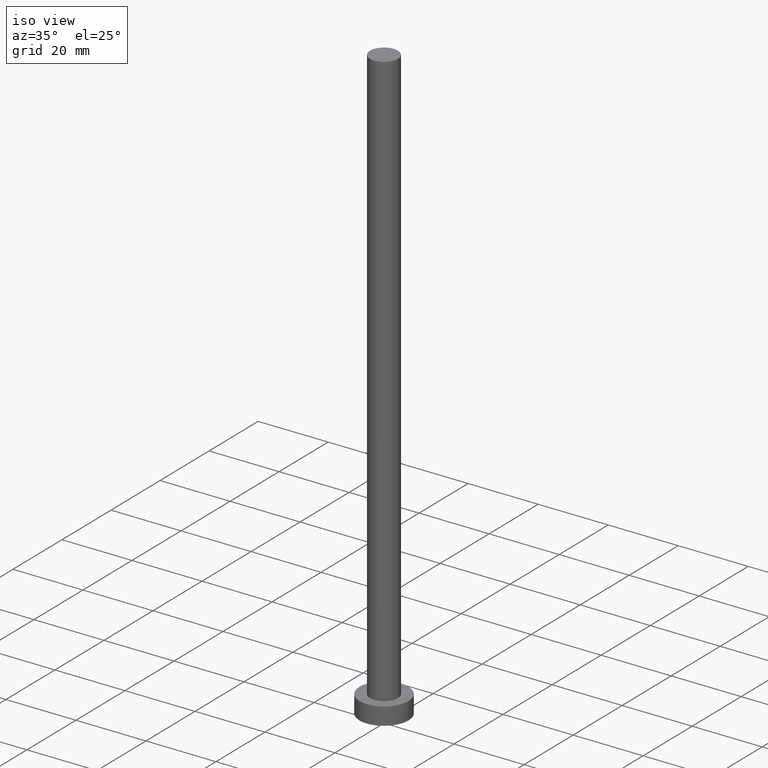
[diagram: clean part render]
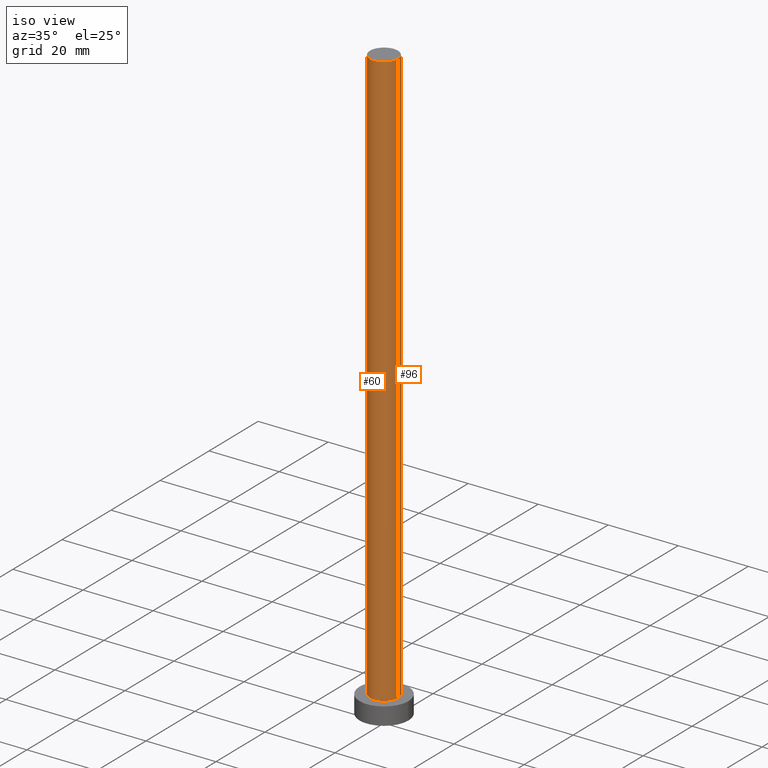
[diagram: same view with one multi-face feature highlighted, each face labeled with its STEP entity id]
A machine part, iso view. The highlighted faces form ONE feature: a constant-radius fillet chain: 2 tangent blend faces with common blend radius 4 mm. The faces share edges in the B-rep.
Their STEP definitions:
[1] entity #60 (Cylinder):
#8 = AXIS2_PLACEMENT_3D ( 'NONE', #219, #35, #117 ) ;
#9 = EDGE_CURVE ( 'NONE', #97, #39, #63, .T. ) ;
#16 = AXIS2_PLACEMENT_3D ( 'NONE', #86, #141, #243 ) ;
#29 = CIRCLE ( 'NONE', #16, 4.000000000000000000 ) ;
#32 = VERTEX_POINT ( 'NONE', #216 ) ;
#35 = DIRECTION ( 'NONE',  ( 0.000000000000000000, 0.000000000000000000, 1.000000000000000000 ) ) ;
#39 = VERTEX_POINT ( 'NONE', #200 ) ;
#42 = VECTOR ( 'NONE', #67, 1000.000000000000000 ) ;
#48 = CARTESIAN_POINT ( 'NONE',  ( 0.000000000000000000, 0.000000000000000000, 170.0000000000000000 ) ) ;
#60 = ADVANCED_FACE ( 'NONE', ( #105 ), #206, .T. ) ;
#62 = EDGE_LOOP ( 'NONE', ( #233, #118, #236, #212 ) ) ;
#63 = CIRCLE ( 'NONE', #8, 4.000000000000000000 ) ;
#67 = DIRECTION ( 'NONE',  ( -0.000000000000000000, -0.000000000000000000, -1.000000000000000000 ) ) ;
#79 = VERTEX_POINT ( 'NONE', #202 ) ;
#86 = CARTESIAN_POINT ( 'NONE',  ( 0.000000000000000000, 0.000000000000000000, 5.000000000000000000 ) ) ;
#88 = LINE ( 'NONE', #162, #195 ) ;
#97 = VERTEX_POINT ( 'NONE', #254 ) ;
#105 = FACE_OUTER_BOUND ( 'NONE', #62, .T. ) ;
#117 = DIRECTION ( 'NONE',  ( 1.000000000000000000, 0.000000000000000000, 0.000000000000000000 ) ) ;
#118 = ORIENTED_EDGE ( 'NONE', *, *, #9, .F. ) ;
#123 = DIRECTION ( 'NONE',  ( -0.000000000000000000, -0.000000000000000000, -1.000000000000000000 ) ) ;
#128 = EDGE_CURVE ( 'NONE', #79, #32, #29, .T. ) ;
#141 = DIRECTION ( 'NONE',  ( 0.000000000000000000, 0.000000000000000000, 1.000000000000000000 ) ) ;
#161 = CARTESIAN_POINT ( 'NONE',  ( -4.000000000000000000, 0.000000000000000000, 170.0000000000000000 ) ) ;
#162 = CARTESIAN_POINT ( 'NONE',  ( 4.000000000000000000, 4.898587196589412829E-16, 170.0000000000000000 ) ) ;
#181 = DIRECTION ( 'NONE',  ( -1.000000000000000000, 0.000000000000000000, 0.000000000000000000 ) ) ;
#195 = VECTOR ( 'NONE', #242, 1000.000000000000000 ) ;
#200 = CARTESIAN_POINT ( 'NONE',  ( 4.000000000000000000, 4.898587196589412829E-16, 170.0000000000000000 ) ) ;
#202 = CARTESIAN_POINT ( 'NONE',  ( -4.000000000000000000, 0.000000000000000000, 5.000000000000000000 ) ) ;
#206 = CYLINDRICAL_SURFACE ( 'NONE', #245, 4.000000000000000000 ) ;
#212 = ORIENTED_EDGE ( 'NONE', *, *, #128, .T. ) ;
#214 = EDGE_CURVE ( 'NONE', #97, #79, #240, .T. ) ;
#216 = CARTESIAN_POINT ( 'NONE',  ( 4.000000000000000000, 4.898587196589412829E-16, 5.000000000000000000 ) ) ;
#219 = CARTESIAN_POINT ( 'NONE',  ( 0.000000000000000000, 0.000000000000000000, 170.0000000000000000 ) ) ;
#233 = ORIENTED_EDGE ( 'NONE', *, *, #235, .F. ) ;
#235 = EDGE_CURVE ( 'NONE', #39, #32, #88, .T. ) ;
#236 = ORIENTED_EDGE ( 'NONE', *, *, #214, .T. ) ;
#240 = LINE ( 'NONE', #161, #42 ) ;
#242 = DIRECTION ( 'NONE',  ( -0.000000000000000000, -0.000000000000000000, -1.000000000000000000 ) ) ;
#243 = DIRECTION ( 'NONE',  ( 1.000000000000000000, 0.000000000000000000, 0.000000000000000000 ) ) ;
#245 = AXIS2_PLACEMENT_3D ( 'NONE', #48, #123, #181 ) ;
#254 = CARTESIAN_POINT ( 'NONE',  ( -4.000000000000000000, 0.000000000000000000, 170.0000000000000000 ) ) ;
[2] entity #96 (Cylinder):
#13 = ORIENTED_EDGE ( 'NONE', *, *, #160, .F. ) ;
#14 = ORIENTED_EDGE ( 'NONE', *, *, #57, .T. ) ;
#20 = DIRECTION ( 'NONE',  ( 0.000000000000000000, 0.000000000000000000, 1.000000000000000000 ) ) ;
#23 = FACE_OUTER_BOUND ( 'NONE', #197, .T. ) ;
#32 = VERTEX_POINT ( 'NONE', #216 ) ;
#38 = ORIENTED_EDGE ( 'NONE', *, *, #235, .T. ) ;
#39 = VERTEX_POINT ( 'NONE', #200 ) ;
#42 = VECTOR ( 'NONE', #67, 1000.000000000000000 ) ;
#46 = DIRECTION ( 'NONE',  ( 1.000000000000000000, 0.000000000000000000, 0.000000000000000000 ) ) ;
#57 = EDGE_CURVE ( 'NONE', #32, #79, #232, .T. ) ;
#67 = DIRECTION ( 'NONE',  ( -0.000000000000000000, -0.000000000000000000, -1.000000000000000000 ) ) ;
#79 = VERTEX_POINT ( 'NONE', #202 ) ;
#88 = LINE ( 'NONE', #162, #195 ) ;
#96 = ADVANCED_FACE ( 'NONE', ( #23 ), #109, .T. ) ;
#97 = VERTEX_POINT ( 'NONE', #254 ) ;
#100 = CARTESIAN_POINT ( 'NONE',  ( 0.000000000000000000, 0.000000000000000000, 5.000000000000000000 ) ) ;
#109 = CYLINDRICAL_SURFACE ( 'NONE', #177, 4.000000000000000000 ) ;
#119 = CARTESIAN_POINT ( 'NONE',  ( 0.000000000000000000, 0.000000000000000000, 170.0000000000000000 ) ) ;
#120 = DIRECTION ( 'NONE',  ( 1.000000000000000000, 0.000000000000000000, 0.000000000000000000 ) ) ;
#139 = DIRECTION ( 'NONE',  ( -1.000000000000000000, 0.000000000000000000, 0.000000000000000000 ) ) ;
#150 = ORIENTED_EDGE ( 'NONE', *, *, #214, .F. ) ;
#160 = EDGE_CURVE ( 'NONE', #39, #97, #176, .T. ) ;
#161 = CARTESIAN_POINT ( 'NONE',  ( -4.000000000000000000, 0.000000000000000000, 170.0000000000000000 ) ) ;
#162 = CARTESIAN_POINT ( 'NONE',  ( 4.000000000000000000, 4.898587196589412829E-16, 170.0000000000000000 ) ) ;
#176 = CIRCLE ( 'NONE', #186, 4.000000000000000000 ) ;
#177 = AXIS2_PLACEMENT_3D ( 'NONE', #187, #239, #139 ) ;
#179 = DIRECTION ( 'NONE',  ( 0.000000000000000000, 0.000000000000000000, 1.000000000000000000 ) ) ;
#186 = AXIS2_PLACEMENT_3D ( 'NONE', #119, #20, #120 ) ;
#187 = CARTESIAN_POINT ( 'NONE',  ( 0.000000000000000000, 0.000000000000000000, 170.0000000000000000 ) ) ;
#195 = VECTOR ( 'NONE', #242, 1000.000000000000000 ) ;
#197 = EDGE_LOOP ( 'NONE', ( #13, #38, #14, #150 ) ) ;
#200 = CARTESIAN_POINT ( 'NONE',  ( 4.000000000000000000, 4.898587196589412829E-16, 170.0000000000000000 ) ) ;
#202 = CARTESIAN_POINT ( 'NONE',  ( -4.000000000000000000, 0.000000000000000000, 5.000000000000000000 ) ) ;
#207 = AXIS2_PLACEMENT_3D ( 'NONE', #100, #179, #46 ) ;
#214 = EDGE_CURVE ( 'NONE', #97, #79, #240, .T. ) ;
#216 = CARTESIAN_POINT ( 'NONE',  ( 4.000000000000000000, 4.898587196589412829E-16, 5.000000000000000000 ) ) ;
#232 = CIRCLE ( 'NONE', #207, 4.000000000000000000 ) ;
#235 = EDGE_CURVE ( 'NONE', #39, #32, #88, .T. ) ;
#239 = DIRECTION ( 'NONE',  ( -0.000000000000000000, -0.000000000000000000, -1.000000000000000000 ) ) ;
#240 = LINE ( 'NONE', #161, #42 ) ;
#242 = DIRECTION ( 'NONE',  ( -0.000000000000000000, -0.000000000000000000, -1.000000000000000000 ) ) ;
#254 = CARTESIAN_POINT ( 'NONE',  ( -4.000000000000000000, 0.000000000000000000, 170.0000000000000000 ) ) ;